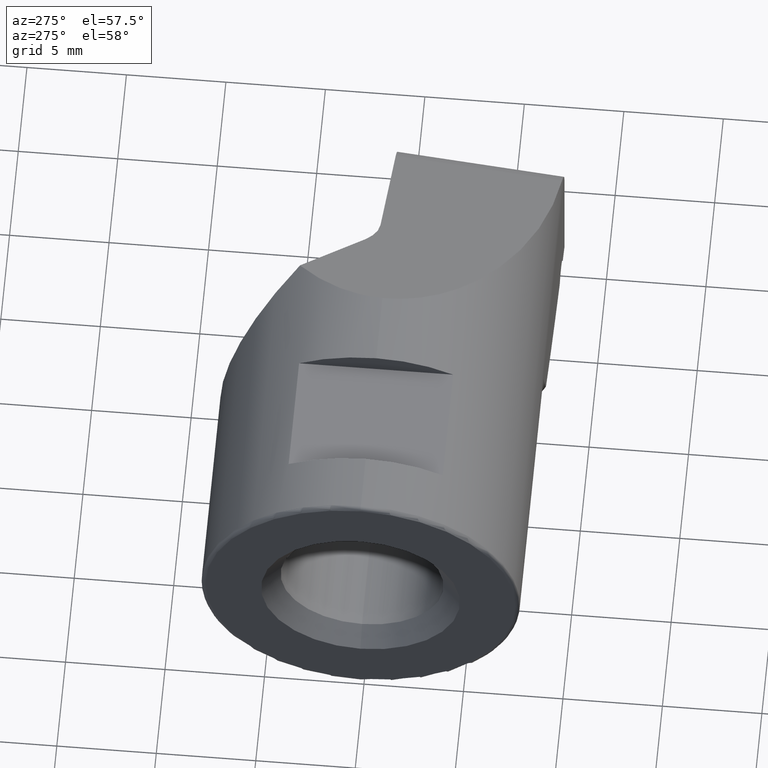
[diagram: clean part render]
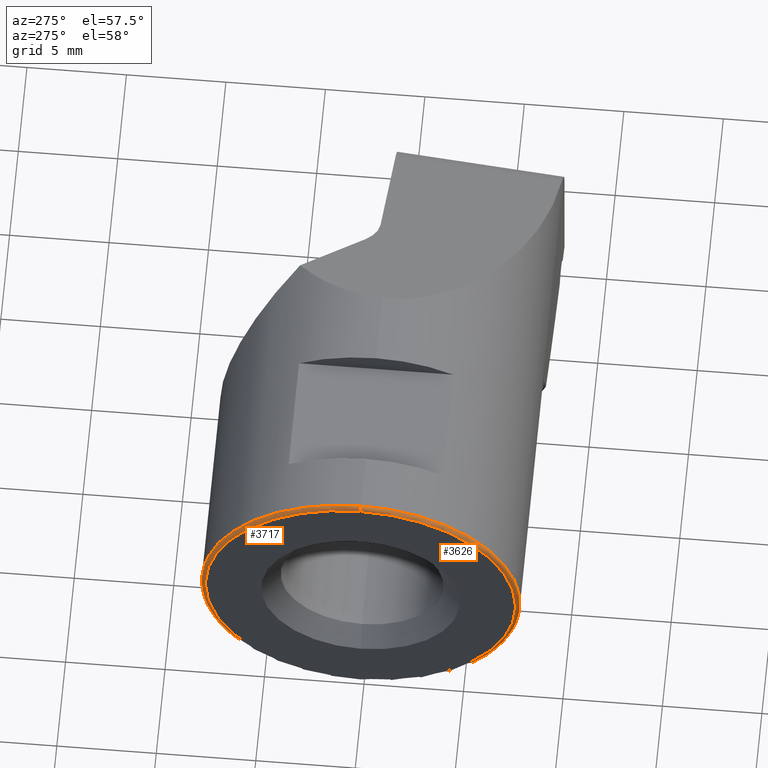
[diagram: same view with one multi-face feature highlighted, each face labeled with its STEP entity id]
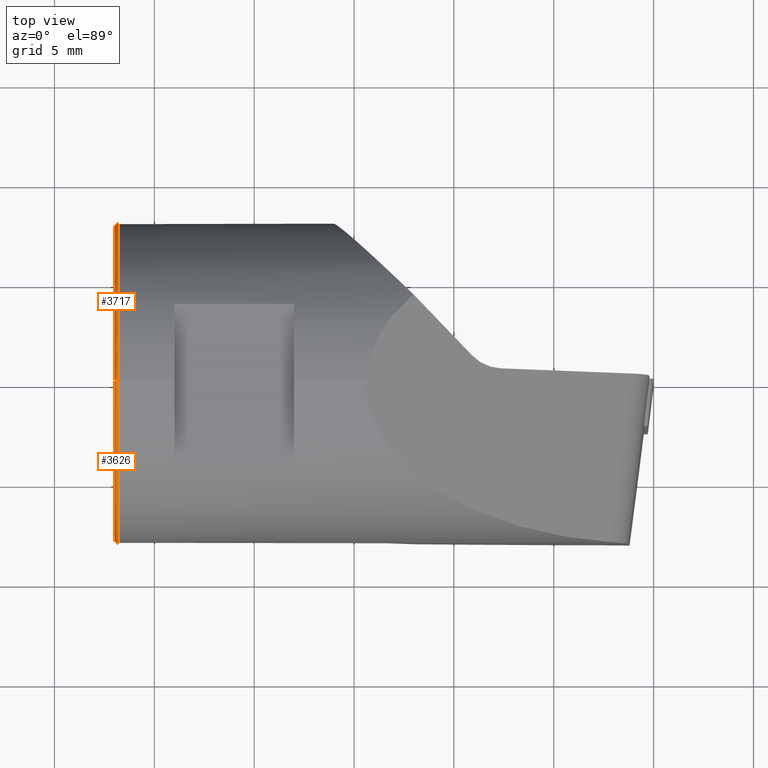
[diagram: same view with one multi-face feature highlighted, each face labeled with its STEP entity id]
A machine part, auxiliary view. The highlighted faces form ONE feature: a constant-radius fillet chain: 2 tangent blend faces with common blend radius 0.2 mm. The faces share edges in the B-rep.
A second angle (top view) of the same feature is appended — it is thin or edge-on in the first view.
Their STEP definitions:
[1] entity #3717 (Torus):
#221 = VERTEX_POINT ( 'NONE', #1357 ) ;
#537 = DIRECTION ( 'NONE',  ( 0.0000000000000000000, 0.0000000000000000000, -1.000000000000000000 ) ) ;
#565 = DIRECTION ( 'NONE',  ( 1.000000000000000000, 0.0000000000000000000, 0.0000000000000000000 ) ) ;
#603 = ORIENTED_EDGE ( 'NONE', *, *, #964, .T. ) ;
#668 = CARTESIAN_POINT ( 'NONE',  ( -26.80000000000000100, 0.0000000000000000000, 10.87500000000000000 ) ) ;
#672 = AXIS2_PLACEMENT_3D ( 'NONE', #3578, #3570, #2817 ) ;
#788 = EDGE_CURVE ( 'NONE', #4026, #1101, #1410, .T. ) ;
#964 = EDGE_CURVE ( 'NONE', #221, #3306, #3376, .T. ) ;
#1048 = EDGE_CURVE ( 'NONE', #221, #4026, #2226, .T. ) ;
#1101 = VERTEX_POINT ( 'NONE', #2035 ) ;
#1357 = CARTESIAN_POINT ( 'NONE',  ( -27.00000000000000000, 9.674709713264088100E-016, 18.67500000000000100 ) ) ;
#1410 = CIRCLE ( 'NONE', #3714, 0.2000000000000000900 ) ;
#1473 = CARTESIAN_POINT ( 'NONE',  ( -26.80000000000000100, 0.0000000000000000000, 10.87500000000000000 ) ) ;
#1477 = DIRECTION ( 'NONE',  ( 1.000000000000000000, 0.0000000000000000000, 0.0000000000000000000 ) ) ;
#1479 = DIRECTION ( 'NONE',  ( 0.0000000000000000000, 0.0000000000000000000, -1.000000000000000000 ) ) ;
#1555 = EDGE_CURVE ( 'NONE', #1101, #3306, #1708, .T. ) ;
#1658 = FACE_OUTER_BOUND ( 'NONE', #4141, .T. ) ;
#1708 = CIRCLE ( 'NONE', #3206, 8.000000000000000000 ) ;
#1800 = DIRECTION ( 'NONE',  ( 0.0000000000000000000, 0.0000000000000000000, -1.000000000000000000 ) ) ;
#1861 = DIRECTION ( 'NONE',  ( -1.000000000000000000, -0.0000000000000000000, -0.0000000000000000000 ) ) ;
#1909 = TOROIDAL_SURFACE ( 'NONE', #2915, 7.800000000000000700, 0.2000000000000000100 ) ;
#2035 = CARTESIAN_POINT ( 'NONE',  ( -26.80000000000000100, 9.797174393178825700E-016, 2.874999999999999100 ) ) ;
#2158 = DIRECTION ( 'NONE',  ( 0.0000000000000000000, 0.0000000000000000000, -1.000000000000000000 ) ) ;
#2226 = CIRCLE ( 'NONE', #3366, 7.800000000000000700 ) ;
#2238 = CARTESIAN_POINT ( 'NONE',  ( -26.80000000000000100, 0.0000000000000000000, 18.87500000000000000 ) ) ;
#2721 = CARTESIAN_POINT ( 'NONE',  ( -26.80000000000000100, 0.0000000000000000000, 3.074999999999998800 ) ) ;
#2740 = CARTESIAN_POINT ( 'NONE',  ( -27.00000000000000000, 0.0000000000000000000, 10.87500000000000000 ) ) ;
#2756 = CARTESIAN_POINT ( 'NONE',  ( -27.00000000000000000, 0.0000000000000000000, 3.074999999999998800 ) ) ;
#2795 = DIRECTION ( 'NONE',  ( 0.0000000000000000000, -1.000000000000000000, 0.0000000000000000000 ) ) ;
#2817 = DIRECTION ( 'NONE',  ( 0.0000000000000000000, 1.224646799147363800E-016, 1.000000000000000000 ) ) ;
#2915 = AXIS2_PLACEMENT_3D ( 'NONE', #668, #565, #537 ) ;
#2977 = ORIENTED_EDGE ( 'NONE', *, *, #1555, .F. ) ;
#3206 = AXIS2_PLACEMENT_3D ( 'NONE', #1473, #1477, #1479 ) ;
#3306 = VERTEX_POINT ( 'NONE', #2238 ) ;
#3366 = AXIS2_PLACEMENT_3D ( 'NONE', #2740, #1861, #1800 ) ;
#3376 = CIRCLE ( 'NONE', #672, 0.1999999999999987900 ) ;
#3570 = DIRECTION ( 'NONE',  ( 0.0000000000000000000, 1.000000000000000000, -1.224646799147353200E-016 ) ) ;
#3578 = CARTESIAN_POINT ( 'NONE',  ( -26.80000000000000100, 9.552245033349356500E-016, 18.67500000000000100 ) ) ;
#3714 = AXIS2_PLACEMENT_3D ( 'NONE', #2721, #2795, #2158 ) ;
#3717 = ADVANCED_FACE ( 'NONE', ( #1658 ), #1909, .T. ) ;
#4026 = VERTEX_POINT ( 'NONE', #2756 ) ;
#4141 = EDGE_LOOP ( 'NONE', ( #4468, #603, #2977, #4424 ) ) ;
#4424 = ORIENTED_EDGE ( 'NONE', *, *, #788, .F. ) ;
#4468 = ORIENTED_EDGE ( 'NONE', *, *, #1048, .F. ) ;
[2] entity #3626 (Torus):
#51 = DIRECTION ( 'NONE',  ( 0.0000000000000000000, 0.0000000000000000000, -1.000000000000000000 ) ) ;
#61 = DIRECTION ( 'NONE',  ( -1.000000000000000000, -0.0000000000000000000, -0.0000000000000000000 ) ) ;
#65 = CARTESIAN_POINT ( 'NONE',  ( -27.00000000000000000, 0.0000000000000000000, 10.87500000000000000 ) ) ;
#221 = VERTEX_POINT ( 'NONE', #1357 ) ;
#363 = EDGE_LOOP ( 'NONE', ( #4257, #3668, #3601, #4221 ) ) ;
#672 = AXIS2_PLACEMENT_3D ( 'NONE', #3578, #3570, #2817 ) ;
#788 = EDGE_CURVE ( 'NONE', #4026, #1101, #1410, .T. ) ;
#861 = DIRECTION ( 'NONE',  ( 0.0000000000000000000, 0.0000000000000000000, -1.000000000000000000 ) ) ;
#898 = TOROIDAL_SURFACE ( 'NONE', #2680, 7.800000000000000700, 0.2000000000000000100 ) ;
#908 = DIRECTION ( 'NONE',  ( 1.000000000000000000, 0.0000000000000000000, 0.0000000000000000000 ) ) ;
#930 = CARTESIAN_POINT ( 'NONE',  ( -26.80000000000000100, 0.0000000000000000000, 10.87500000000000000 ) ) ;
#964 = EDGE_CURVE ( 'NONE', #221, #3306, #3376, .T. ) ;
#1101 = VERTEX_POINT ( 'NONE', #2035 ) ;
#1357 = CARTESIAN_POINT ( 'NONE',  ( -27.00000000000000000, 9.674709713264088100E-016, 18.67500000000000100 ) ) ;
#1410 = CIRCLE ( 'NONE', #3714, 0.2000000000000000900 ) ;
#1484 = CIRCLE ( 'NONE', #4318, 7.800000000000000700 ) ;
#1905 = CIRCLE ( 'NONE', #2744, 8.000000000000000000 ) ;
#2035 = CARTESIAN_POINT ( 'NONE',  ( -26.80000000000000100, 9.797174393178825700E-016, 2.874999999999999100 ) ) ;
#2158 = DIRECTION ( 'NONE',  ( 0.0000000000000000000, 0.0000000000000000000, -1.000000000000000000 ) ) ;
#2215 = EDGE_CURVE ( 'NONE', #4026, #221, #1484, .T. ) ;
#2238 = CARTESIAN_POINT ( 'NONE',  ( -26.80000000000000100, 0.0000000000000000000, 18.87500000000000000 ) ) ;
#2680 = AXIS2_PLACEMENT_3D ( 'NONE', #930, #908, #861 ) ;
#2721 = CARTESIAN_POINT ( 'NONE',  ( -26.80000000000000100, 0.0000000000000000000, 3.074999999999998800 ) ) ;
#2744 = AXIS2_PLACEMENT_3D ( 'NONE', #4119, #4111, #4101 ) ;
#2756 = CARTESIAN_POINT ( 'NONE',  ( -27.00000000000000000, 0.0000000000000000000, 3.074999999999998800 ) ) ;
#2795 = DIRECTION ( 'NONE',  ( 0.0000000000000000000, -1.000000000000000000, 0.0000000000000000000 ) ) ;
#2817 = DIRECTION ( 'NONE',  ( 0.0000000000000000000, 1.224646799147363800E-016, 1.000000000000000000 ) ) ;
#3306 = VERTEX_POINT ( 'NONE', #2238 ) ;
#3376 = CIRCLE ( 'NONE', #672, 0.1999999999999987900 ) ;
#3570 = DIRECTION ( 'NONE',  ( 0.0000000000000000000, 1.000000000000000000, -1.224646799147353200E-016 ) ) ;
#3578 = CARTESIAN_POINT ( 'NONE',  ( -26.80000000000000100, 9.552245033349356500E-016, 18.67500000000000100 ) ) ;
#3601 = ORIENTED_EDGE ( 'NONE', *, *, #788, .T. ) ;
#3626 = ADVANCED_FACE ( 'NONE', ( #4732 ), #898, .T. ) ;
#3668 = ORIENTED_EDGE ( 'NONE', *, *, #2215, .F. ) ;
#3714 = AXIS2_PLACEMENT_3D ( 'NONE', #2721, #2795, #2158 ) ;
#4026 = VERTEX_POINT ( 'NONE', #2756 ) ;
#4101 = DIRECTION ( 'NONE',  ( 0.0000000000000000000, 0.0000000000000000000, -1.000000000000000000 ) ) ;
#4111 = DIRECTION ( 'NONE',  ( 1.000000000000000000, 0.0000000000000000000, 0.0000000000000000000 ) ) ;
#4119 = CARTESIAN_POINT ( 'NONE',  ( -26.80000000000000100, 0.0000000000000000000, 10.87500000000000000 ) ) ;
#4221 = ORIENTED_EDGE ( 'NONE', *, *, #4438, .F. ) ;
#4257 = ORIENTED_EDGE ( 'NONE', *, *, #964, .F. ) ;
#4318 = AXIS2_PLACEMENT_3D ( 'NONE', #65, #61, #51 ) ;
#4438 = EDGE_CURVE ( 'NONE', #3306, #1101, #1905, .T. ) ;
#4732 = FACE_OUTER_BOUND ( 'NONE', #363, .T. ) ;